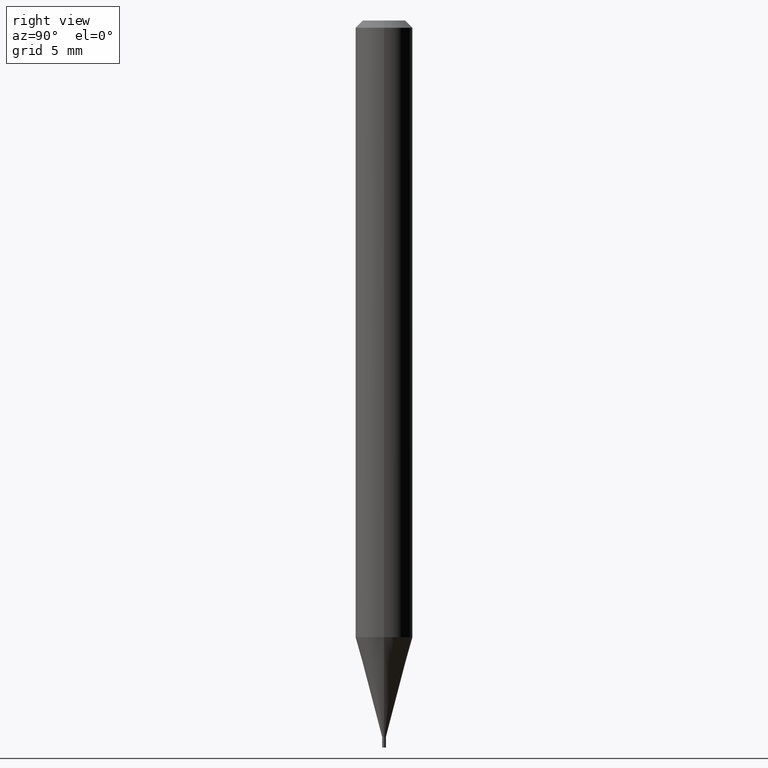
[diagram: clean part render]
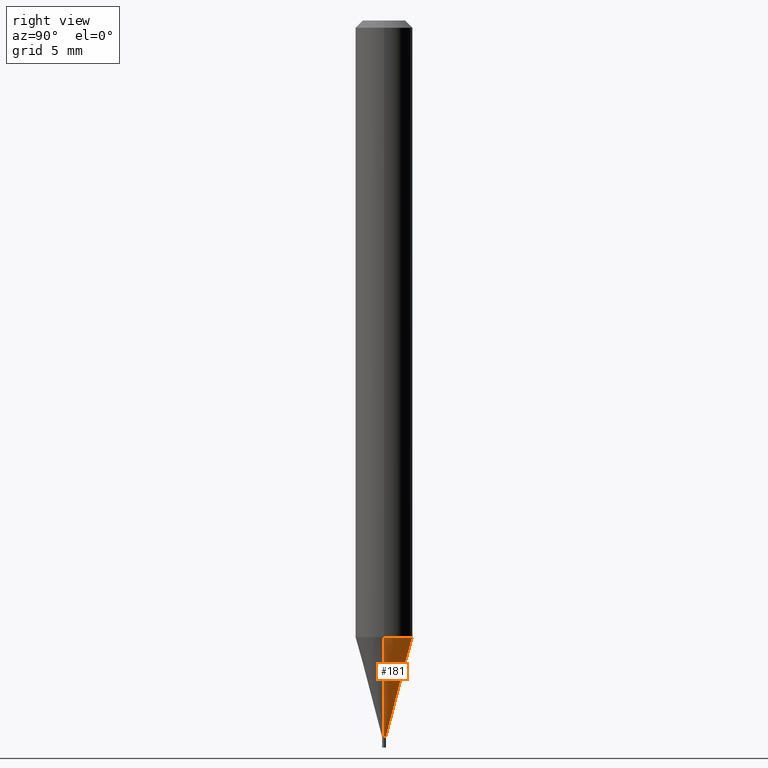
[diagram: same view with one face highlighted and labeled with its STEP entity id]
A machine part, right view. The second image highlights one B-rep face of the part: STEP entity #181.
In plain terms, the highlighted conical surface has half-angle 15 deg.
Its self-contained STEP definition (entity closure, byte-faithful):
#23 = ORIENTED_EDGE ( 'NONE', *, *, #250, .F. ) ;
#32 = CARTESIAN_POINT ( 'NONE',  ( 3.614402895541632280E-29, -5.160409418810169653E-15, -1.478000000000000203 ) ) ;
#37 = EDGE_CURVE ( 'NONE', #272, #271, #247, .T. ) ;
#47 = CARTESIAN_POINT ( 'NONE',  ( 0.003949999999999924925, -5.187992121387030198E-15, -1.478000000000000203 ) ) ;
#51 = EDGE_LOOP ( 'NONE', ( #400, #264, #438, #23 ) ) ;
#54 = CARTESIAN_POINT ( 'NONE',  ( -0.05904999999999999832, -4.022859678505539415E-15, -1.272364000502955284 ) ) ;
#63 = DIRECTION ( 'NONE',  ( -2.445468806185136597E-29, 3.491481338843145583E-15, 1.000000000000000000 ) ) ;
#65 = CARTESIAN_POINT ( 'NONE',  ( 3.111526473342906720E-29, -4.442435163971879697E-15, -1.272364000502955284 ) ) ;
#84 = DIRECTION ( 'NONE',  ( 1.000000000000000000, -6.982962677686379518E-15, 0.000000000000000000 ) ) ;
#100 = DIRECTION ( 'NONE',  ( 1.000000000000000000, -6.982962677686379518E-15, 0.000000000000000000 ) ) ;
#103 = CARTESIAN_POINT ( 'NONE',  ( -0.003949999999999924925, -5.132342980747646420E-15, -1.478000000000000203 ) ) ;
#109 = AXIS2_PLACEMENT_3D ( 'NONE', #32, #203, #100 ) ;
#163 = DIRECTION ( 'NONE',  ( -2.445468806185136597E-29, 3.491481338843145583E-15, 1.000000000000000000 ) ) ;
#166 = VECTOR ( 'NONE', #269, 39.37007874015747433 ) ;
#171 = DIRECTION ( 'NONE',  ( 1.000000000000000000, -6.982962677686273021E-15, 0.000000000000000000 ) ) ;
#181 = ADVANCED_FACE ( 'NONE', ( #255 ), #298, .T. ) ;
#203 = DIRECTION ( 'NONE',  ( -2.445468806185136597E-29, 3.491481338843145583E-15, 1.000000000000000000 ) ) ;
#221 = DIRECTION ( 'NONE',  ( 0.2588190451025213501, 1.565188264969621968E-15, 0.9659258262890682012 ) ) ;
#223 = CARTESIAN_POINT ( 'NONE',  ( 0.003949999999999924925, -5.187992121387030198E-15, -1.478000000000000203 ) ) ;
#247 = CIRCLE ( 'NONE', #363, 0.05904999999999999832 ) ;
#250 = EDGE_CURVE ( 'NONE', #376, #272, #268, .T. ) ;
#255 = FACE_OUTER_BOUND ( 'NONE', #51, .T. ) ;
#264 = ORIENTED_EDGE ( 'NONE', *, *, #371, .T. ) ;
#268 = LINE ( 'NONE', #223, #328 ) ;
#269 = DIRECTION ( 'NONE',  ( -0.2588190451025213501, 5.211531920934551042E-15, 0.9659258262890682012 ) ) ;
#271 = VERTEX_POINT ( 'NONE', #54 ) ;
#272 = VERTEX_POINT ( 'NONE', #444 ) ;
#298 = CONICAL_SURFACE ( 'NONE', #109, 0.003949999999999924925, 0.2617993877991500740 ) ;
#306 = CIRCLE ( 'NONE', #361, 0.003949999999999924925 ) ;
#328 = VECTOR ( 'NONE', #221, 39.37007874015747433 ) ;
#335 = CARTESIAN_POINT ( 'NONE',  ( 3.614402895541632280E-29, -5.160409418810169653E-15, -1.478000000000000203 ) ) ;
#361 = AXIS2_PLACEMENT_3D ( 'NONE', #335, #63, #84 ) ;
#363 = AXIS2_PLACEMENT_3D ( 'NONE', #65, #163, #171 ) ;
#371 = EDGE_CURVE ( 'NONE', #406, #271, #423, .T. ) ;
#376 = VERTEX_POINT ( 'NONE', #47 ) ;
#400 = ORIENTED_EDGE ( 'NONE', *, *, #403, .T. ) ;
#403 = EDGE_CURVE ( 'NONE', #376, #406, #306, .T. ) ;
#406 = VERTEX_POINT ( 'NONE', #419 ) ;
#419 = CARTESIAN_POINT ( 'NONE',  ( -0.003949999999999924925, -4.577601329626593312E-15, -1.478000000000000203 ) ) ;
#423 = LINE ( 'NONE', #103, #166 ) ;
#438 = ORIENTED_EDGE ( 'NONE', *, *, #37, .F. ) ;
#444 = CARTESIAN_POINT ( 'NONE',  ( 0.05904999999999999832, -4.854779110089253829E-15, -1.272364000502955284 ) ) ;